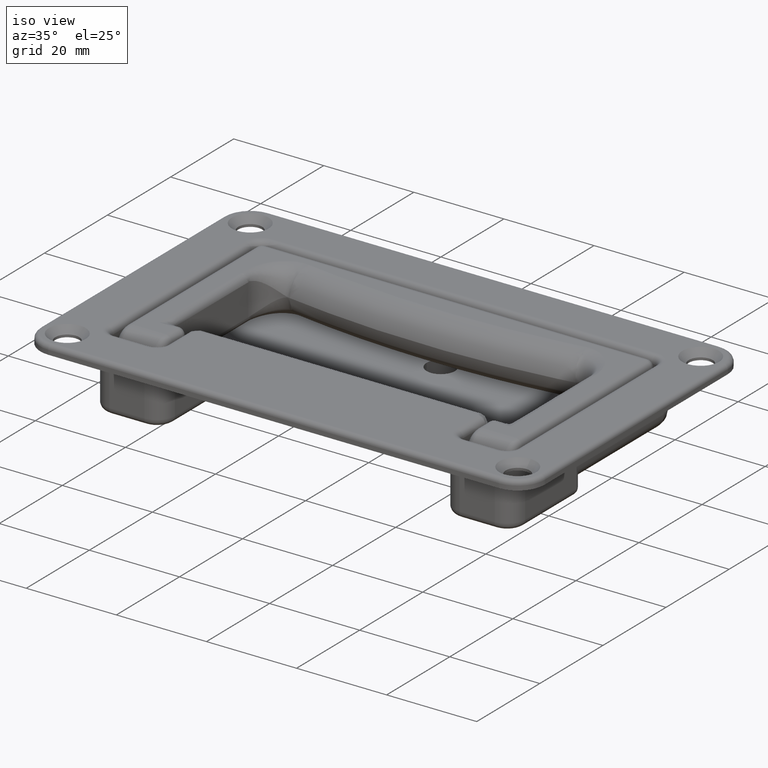
[diagram: clean part render]
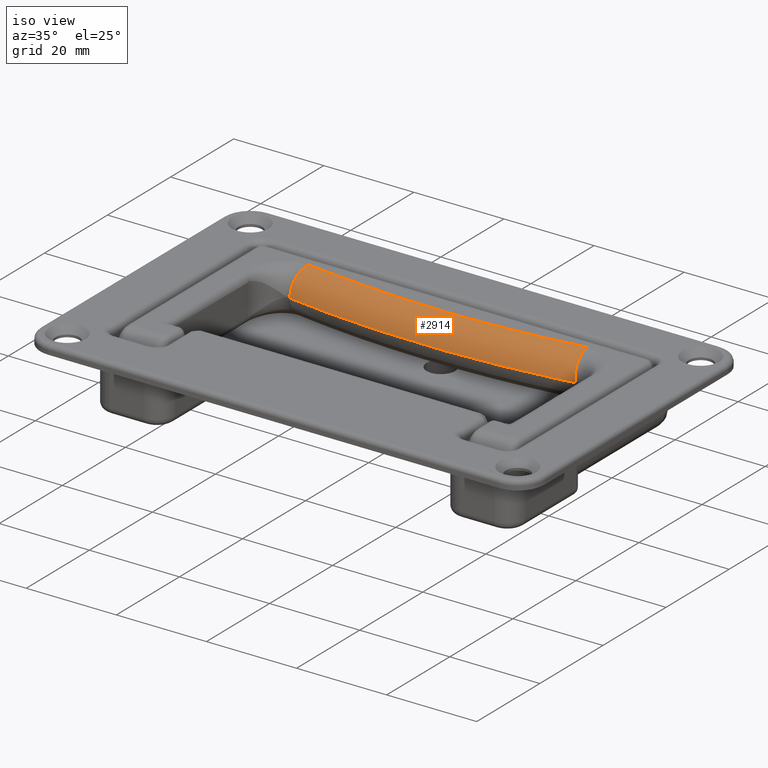
[diagram: same view with one face highlighted and labeled with its STEP entity id]
A machine part, iso view. The second image highlights one B-rep face of the part: STEP entity #2914.
In plain terms, the highlighted face is a freeform B-spline surface patch.
Its self-contained STEP definition (entity closure, byte-faithful):
#37=(
BOUNDED_SURFACE()
B_SPLINE_SURFACE(3,3,((#6235,#6236,#6237,#6238,#6239,#6240,#6241,#6242,
#6243,#6244,#6245,#6246,#6247,#6248,#6249,#6250,#6251,#6252,#6253,#6254,
#6255,#6256,#6257,#6258,#6259,#6260,#6261,#6262,#6263,#6264,#6265,#6266,
#6267,#6268,#6269,#6270,#6271,#6272,#6273,#6274,#6275,#6276,#6277,#6278,
#6279,#6280,#6281,#6282,#6283,#6284,#6285,#6286,#6287,#6288,#6289,#6290,
#6291,#6292,#6293),(#6294,#6295,#6296,#6297,#6298,#6299,#6300,#6301,#6302,
#6303,#6304,#6305,#6306,#6307,#6308,#6309,#6310,#6311,#6312,#6313,#6314,
#6315,#6316,#6317,#6318,#6319,#6320,#6321,#6322,#6323,#6324,#6325,#6326,
#6327,#6328,#6329,#6330,#6331,#6332,#6333,#6334,#6335,#6336,#6337,#6338,
#6339,#6340,#6341,#6342,#6343,#6344,#6345,#6346,#6347,#6348,#6349,#6350,
#6351,#6352),(#6353,#6354,#6355,#6356,#6357,#6358,#6359,#6360,#6361,#6362,
#6363,#6364,#6365,#6366,#6367,#6368,#6369,#6370,#6371,#6372,#6373,#6374,
#6375,#6376,#6377,#6378,#6379,#6380,#6381,#6382,#6383,#6384,#6385,#6386,
#6387,#6388,#6389,#6390,#6391,#6392,#6393,#6394,#6395,#6396,#6397,#6398,
#6399,#6400,#6401,#6402,#6403,#6404,#6405,#6406,#6407,#6408,#6409,#6410,
#6411),(#6412,#6413,#6414,#6415,#6416,#6417,#6418,#6419,#6420,#6421,#6422,
#6423,#6424,#6425,#6426,#6427,#6428,#6429,#6430,#6431,#6432,#6433,#6434,
#6435,#6436,#6437,#6438,#6439,#6440,#6441,#6442,#6443,#6444,#6445,#6446,
#6447,#6448,#6449,#6450,#6451,#6452,#6453,#6454,#6455,#6456,#6457,#6458,
#6459,#6460,#6461,#6462,#6463,#6464,#6465,#6466,#6467,#6468,#6469,#6470)),
 .UNSPECIFIED.,.F.,.F.,.F.)
B_SPLINE_SURFACE_WITH_KNOTS((4,4),(4,1,1,1,1,1,1,1,1,1,1,1,1,1,1,1,1,1,
1,1,1,1,1,1,1,1,1,1,1,1,1,1,1,1,1,1,1,1,1,1,1,1,1,1,1,1,1,1,1,1,1,1,1,1,
1,1,4),(0.,1.),(0.,0.0031067408961337,0.00706060473717921,0.0109126921259984,
0.0150313092078769,0.0195351392685787,0.0244048529274623,0.0296864726446738,
0.0354174941198281,0.0416379597517066,0.0483949547568112,0.0557395278980215,
0.0637289168728359,0.0724269222884277,0.0819048607997896,0.0922428410743,
0.103531170099131,0.115872104203052,0.129381903727005,0.144193272844084,
0.160458432106241,0.178353037445149,0.198081024029385,0.219880825336709,
0.244033423261423,0.270872197346571,0.300799786673113,0.334292865968391,
0.371982362949465,0.414484274279425,0.463183869029946,0.517319185773744,
0.570740002156209,0.618187999553019,0.659897798131041,0.696843616389402,
0.729767065893478,0.75923526261593,0.785707731060811,0.809582450006799,
0.831163804482408,0.850724371146397,0.868489781829198,0.884666721153594,
0.899404935101038,0.912836157773377,0.925087151757453,0.936282771320659,
0.946541483564136,0.955907683879712,0.964382955670574,0.971966900334107,
0.978757667570511,0.984953391394723,0.990764054962599,0.996426813470781,
1.),.UNSPECIFIED.)
GEOMETRIC_REPRESENTATION_ITEM()
RATIONAL_B_SPLINE_SURFACE(((1.191078568094,1.191078568094,1.191078568094,
1.191078568094,1.191078568094,1.191078568094,1.191078568094,1.191078568094,
1.191078568094,1.191078568094,1.191078568094,1.191078568094,1.191078568094,
1.191078568094,1.191078568094,1.191078568094,1.191078568094,1.191078568094,
1.191078568094,1.191078568094,1.191078568094,1.191078568094,1.191078568094,
1.191078568094,1.191078568094,1.191078568094,1.191078568094,1.191078568094,
1.191078568094,1.191078568094,1.191078568094,1.191078568094,1.191078568094,
1.191078568094,1.191078568094,1.191078568094,1.191078568094,1.191078568094,
1.191078568094,1.191078568094,1.191078568094,1.191078568094,1.191078568094,
1.191078568094,1.191078568094,1.191078568094,1.191078568094,1.191078568094,
1.191078568094,1.191078568094,1.191078568094,1.191078568094,1.191078568094,
1.191078568094,1.191078568094,1.191078568094,1.191078568094,1.191078568094,
1.191078568094),(0.9363071439685,0.9363071439685,0.9363071439685,0.9363071439685,
0.9363071439685,0.9363071439685,0.9363071439685,0.9363071439685,0.9363071439685,
0.9363071439685,0.9363071439685,0.9363071439685,0.9363071439685,0.9363071439685,
0.9363071439685,0.9363071439685,0.9363071439685,0.9363071439685,0.9363071439685,
0.9363071439685,0.9363071439685,0.9363071439685,0.9363071439685,0.9363071439685,
0.9363071439685,0.9363071439685,0.9363071439685,0.9363071439685,0.9363071439685,
0.9363071439685,0.9363071439685,0.9363071439685,0.9363071439685,0.9363071439685,
0.9363071439685,0.9363071439685,0.9363071439685,0.9363071439685,0.9363071439685,
0.9363071439685,0.9363071439685,0.9363071439685,0.9363071439685,0.9363071439685,
0.9363071439685,0.9363071439685,0.9363071439685,0.9363071439685,0.9363071439685,
0.9363071439685,0.9363071439685,0.9363071439685,0.9363071439685,0.9363071439685,
0.9363071439685,0.9363071439685,0.9363071439685,0.9363071439685,0.9363071439685),
(0.9363071439685,0.9363071439685,0.9363071439685,0.9363071439685,0.9363071439685,
0.9363071439685,0.9363071439685,0.9363071439685,0.9363071439685,0.9363071439685,
0.9363071439685,0.9363071439685,0.9363071439685,0.9363071439685,0.9363071439685,
0.9363071439685,0.9363071439685,0.9363071439685,0.9363071439685,0.9363071439685,
0.9363071439685,0.9363071439685,0.9363071439685,0.9363071439685,0.9363071439685,
0.9363071439685,0.9363071439685,0.9363071439685,0.9363071439685,0.9363071439685,
0.9363071439685,0.9363071439685,0.9363071439685,0.9363071439685,0.9363071439685,
0.9363071439685,0.9363071439685,0.9363071439685,0.9363071439685,0.9363071439685,
0.9363071439685,0.9363071439685,0.9363071439685,0.9363071439685,0.9363071439685,
0.9363071439685,0.9363071439685,0.9363071439685,0.9363071439685,0.9363071439685,
0.9363071439685,0.9363071439685,0.9363071439685,0.9363071439685,0.9363071439685,
0.9363071439685,0.9363071439685,0.9363071439685,0.9363071439685),(1.191078568094,
1.191078568094,1.191078568094,1.191078568094,1.191078568094,1.191078568094,
1.191078568094,1.191078568094,1.191078568094,1.191078568094,1.191078568094,
1.191078568094,1.191078568094,1.191078568094,1.191078568094,1.191078568094,
1.191078568094,1.191078568094,1.191078568094,1.191078568094,1.191078568094,
1.191078568094,1.191078568094,1.191078568094,1.191078568094,1.191078568094,
1.191078568094,1.191078568094,1.191078568094,1.191078568094,1.191078568094,
1.191078568094,1.191078568094,1.191078568094,1.191078568094,1.191078568094,
1.191078568094,1.191078568094,1.191078568094,1.191078568094,1.191078568094,
1.191078568094,1.191078568094,1.191078568094,1.191078568094,1.191078568094,
1.191078568094,1.191078568094,1.191078568094,1.191078568094,1.191078568094,
1.191078568094,1.191078568094,1.191078568094,1.191078568094,1.191078568094,
1.191078568094,1.191078568094,1.191078568094)))
REPRESENTATION_ITEM('')
SURFACE()
);
#94=B_SPLINE_CURVE_WITH_KNOTS('',3,(#4807,#4808,#4809,#4810,#4811,#4812,
#4813,#4814,#4815,#4816,#4817,#4818,#4819,#4820,#4821,#4822,#4823,#4824,
#4825,#4826,#4827,#4828,#4829,#4830,#4831,#4832,#4833,#4834,#4835,#4836,
#4837,#4838,#4839,#4840,#4841,#4842,#4843,#4844,#4845,#4846,#4847,#4848,
#4849,#4850,#4851,#4852,#4853,#4854,#4855,#4856,#4857,#4858,#4859,#4860,
#4861),.UNSPECIFIED.,.F.,.F.,(4,1,1,1,1,1,1,1,1,1,1,1,1,1,1,1,1,1,1,1,1,
1,1,1,1,1,1,1,1,1,1,1,1,1,1,1,1,1,1,1,1,1,1,1,1,1,1,1,1,1,1,1,4),(0.,0.01923076923077,
0.03846153846154,0.05769230769231,0.07692307692308,0.09615384615385,0.1153846153846,
0.1346153846154,0.1538461538462,0.1730769230769,0.1923076923077,0.2115384615385,
0.2307692307692,0.25,0.2692307692308,0.2884615384615,0.3076923076923,0.3269230769231,
0.3461538461538,0.3653846153846,0.3846153846154,0.4038461538462,0.4230769230769,
0.4423076923077,0.4615384615385,0.4807692307692,0.5,0.5192307692308,0.5384615384615,
0.5576923076923,0.5769230769231,0.5961538461538,0.6153846153846,0.6346153846154,
0.6538461538462,0.6730769230769,0.6923076923077,0.7115384615385,0.7307692307692,
0.75,0.7692307692308,0.7884615384615,0.8076923076923,0.8269230769231,0.8461538461538,
0.8653846153846,0.8846153846154,0.9038461538462,0.9230769230769,0.9423076923077,
0.9615384615385,0.9807692307692,1.),.UNSPECIFIED.);
#112=B_SPLINE_CURVE_WITH_KNOTS('',3,(#6185,#6186,#6187,#6188,#6189,#6190,
#6191,#6192,#6193,#6194,#6195,#6196,#6197,#6198,#6199,#6200,#6201,#6202,
#6203,#6204,#6205,#6206,#6207,#6208,#6209,#6210,#6211,#6212,#6213,#6214,
#6215,#6216,#6217,#6218,#6219,#6220,#6221,#6222,#6223,#6224,#6225,#6226,
#6227,#6228,#6229,#6230,#6231,#6232,#6233,#6234),.UNSPECIFIED.,.F.,.F.,
(4,2,2,2,2,2,2,2,2,2,2,2,2,2,2,2,2,2,2,2,2,2,2,2,4),(0.,0.0452750668471288,
0.0898338963502772,0.13374371765165,0.177069405610516,0.221123353366399,
0.26327097904619,0.30505733008236,0.346536323288448,0.387761067408007,0.428784064068944,
0.469657398323505,0.510432917995307,0.551162400854743,0.59250867196098,
0.633370461100893,0.674351930225354,0.715500234889848,0.757108318593547,
0.798877860228519,0.841149953553067,0.881932569704645,0.924974291673601,
0.968697033747301,1.),.UNSPECIFIED.);
#113=B_SPLINE_CURVE_WITH_KNOTS('',3,(#6472,#6473,#6474,#6475,#6476,#6477,
#6478,#6479,#6480,#6481,#6482,#6483,#6484,#6485,#6486,#6487,#6488,#6489,
#6490,#6491,#6492,#6493,#6494,#6495,#6496,#6497,#6498,#6499,#6500,#6501,
#6502,#6503,#6504,#6505,#6506,#6507,#6508,#6509,#6510,#6511,#6512,#6513,
#6514,#6515,#6516,#6517,#6518,#6519,#6520,#6521,#6522,#6523,#6524,#6525,
#6526,#6527,#6528,#6529,#6530,#6531,#6532,#6533,#6534,#6535,#6536,#6537,
#6538,#6539,#6540,#6541,#6542,#6543,#6544,#6545,#6546,#6547,#6548,#6549,
#6550,#6551,#6552,#6553,#6554,#6555,#6556,#6557,#6558,#6559,#6560,#6561,
#6562,#6563,#6564,#6565,#6566,#6567,#6568,#6569,#6570,#6571,#6572,#6573,
#6574,#6575,#6576,#6577,#6578,#6579,#6580,#6581,#6582,#6583,#6584,#6585,
#6586,#6587,#6588,#6589,#6590,#6591,#6592,#6593,#6594,#6595,#6596,#6597,
#6598,#6599,#6600,#6601,#6602,#6603,#6604,#6605,#6606,#6607,#6608,#6609,
#6610,#6611,#6612,#6613,#6614),.UNSPECIFIED.,.F.,.F.,(4,2,2,2,2,2,2,2,2,
2,2,2,2,2,2,2,2,2,2,2,2,2,2,2,2,2,2,2,2,2,2,2,2,2,2,2,2,2,2,2,2,2,2,2,2,
2,1,2,2,2,2,2,2,2,2,2,2,2,2,2,2,2,2,2,2,2,2,2,2,2,2,4),(0.,0.0134502502329202,
0.0269010409848332,0.0403519753413261,0.0538024401530499,0.062500000000008,
0.0759478269140315,0.0781250000000099,0.0859375000000109,0.0898437500000115,
0.0916055434963302,0.093750000000012,0.103285460841446,0.114333926483047,
0.125000000000015,0.13604792905593,0.147094238336974,0.156250000000017,
0.160156250000018,0.161929207612994,0.164062500000018,0.171875000000018,
0.18000997101178,0.187500000000017,0.200469068591085,0.213436460290535,
0.226401855597884,0.239362214722198,0.244368970073248,0.250000000000016,
0.262952358147454,0.275890989520313,0.280978551976782,0.281250000000015,
0.291155724437667,0.301136915811092,0.311151656948225,0.312500000000014,
0.313434805398419,0.346131632928028,0.375000000000012,0.378828385488723,
0.411525041703938,0.43750000000001,0.444221634083674,0.476918255050848,
0.484375000000009,0.492187500000009,0.495066266146991,0.498072247559715,
0.500000000000009,0.511822498585362,0.539238883639372,0.554366338875631,
0.581940759727352,0.601424581462226,0.629134083791194,0.654838162969735,
0.682618157194314,0.710450853947515,0.71819661544615,0.746061635238917,
0.750000000000004,0.77789767512645,0.800766970929936,0.828672722622711,
0.856586826431758,0.884505760726815,0.913379320545111,0.941301663099795,
0.970650831549898,1.),.UNSPECIFIED.);
#114=B_SPLINE_CURVE_WITH_KNOTS('',3,(#6615,#6616,#6617,#6618,#6619,#6620,
#6621,#6622,#6623,#6624,#6625,#6626,#6627,#6628,#6629,#6630,#6631,#6632,
#6633,#6634,#6635,#6636,#6637,#6638,#6639,#6640,#6641,#6642,#6643,#6644,
#6645,#6646,#6647,#6648,#6649,#6650,#6651,#6652,#6653,#6654,#6655,#6656,
#6657,#6658,#6659,#6660,#6661,#6662,#6663,#6664,#6665,#6666,#6667,#6668,
#6669,#6670,#6671,#6672,#6673,#6674,#6675,#6676,#6677,#6678,#6679,#6680,
#6681,#6682,#6683,#6684,#6685,#6686,#6687),.UNSPECIFIED.,.F.,.F.,(4,3,3,
3,3,3,3,3,3,3,3,3,3,3,3,3,3,3,3,3,3,3,3,3,4),(0.,0.044076678863473,0.0873671548322226,
0.129586886924584,0.171005454363514,0.212129772568075,0.252821827003988,
0.293465263261969,0.334088407901873,0.375566305926405,0.416105401770895,
0.458052700885447,0.5,0.541031962686012,0.582255763623328,0.623674304074553,
0.665255482470517,0.707098547161702,0.748926373752993,0.790895293067639,
0.83314670899277,0.87622991773283,0.919785676056079,0.963409505770987,1.),
 .UNSPECIFIED.);
#650=FACE_OUTER_BOUND('',#850,.T.);
#850=EDGE_LOOP('',(#2125,#2126,#2127,#2128));
#1271=VERTEX_POINT('',#4767);
#1272=VERTEX_POINT('',#4806);
#1296=VERTEX_POINT('',#5775);
#1297=VERTEX_POINT('',#6471);
#1548=EDGE_CURVE('',#1271,#1272,#94,.T.);
#1603=EDGE_CURVE('',#1296,#1271,#112,.T.);
#1604=EDGE_CURVE('',#1296,#1297,#113,.T.);
#1605=EDGE_CURVE('',#1272,#1297,#114,.T.);
#2125=ORIENTED_EDGE('',*,*,#1603,.F.);
#2126=ORIENTED_EDGE('',*,*,#1604,.T.);
#2127=ORIENTED_EDGE('',*,*,#1605,.F.);
#2128=ORIENTED_EDGE('',*,*,#1548,.F.);
#2914=ADVANCED_FACE('',(#650),#37,.T.);
#4767=CARTESIAN_POINT('',(24.0293794437392,-47.6178597288155,-55.0000000002253));
#4806=CARTESIAN_POINT('',(85.9705894391777,-47.6176548354726,-55.000001796243));
#4807=CARTESIAN_POINT('Ctrl Pts',(24.0293800216898,-47.61785981826,-55.000000000007));
#4808=CARTESIAN_POINT('Ctrl Pts',(24.1092527912098,-47.62915603768,-55.000000000007));
#4809=CARTESIAN_POINT('Ctrl Pts',(24.2761227168398,-47.65561455615,-55.000000000007));
#4810=CARTESIAN_POINT('Ctrl Pts',(24.5498404143898,-47.69775284032,-55.000000000007));
#4811=CARTESIAN_POINT('Ctrl Pts',(24.8448542284998,-47.74212288608,-55.000000000007));
#4812=CARTESIAN_POINT('Ctrl Pts',(25.1645028296099,-47.79016348175,-55.000000000007));
#4813=CARTESIAN_POINT('Ctrl Pts',(25.5109077576697,-47.84140811226,-55.000000000007));
#4814=CARTESIAN_POINT('Ctrl Pts',(25.8863283082898,-47.89635524015,-55.000000000007));
#4815=CARTESIAN_POINT('Ctrl Pts',(26.2935685109299,-47.95510890182,-55.000000000007));
#4816=CARTESIAN_POINT('Ctrl Pts',(26.7355768000898,-48.0179414784599,-55.000000000007));
#4817=CARTESIAN_POINT('Ctrl Pts',(27.2156843304598,-48.0850607089,-55.000000000007));
#4818=CARTESIAN_POINT('Ctrl Pts',(27.7375909488598,-48.15670066925,-55.000000000007));
#4819=CARTESIAN_POINT('Ctrl Pts',(28.3054211984298,-48.2330772410101,-55.000000000007));
#4820=CARTESIAN_POINT('Ctrl Pts',(28.9237954909598,-48.3143982703899,-55.000000000007));
#4821=CARTESIAN_POINT('Ctrl Pts',(29.5979067727298,-48.4008492597401,-55.000000000007));
#4822=CARTESIAN_POINT('Ctrl Pts',(30.3336160027798,-48.4925848242399,-55.000000000007));
#4823=CARTESIAN_POINT('Ctrl Pts',(31.1375656329897,-48.5897130874901,-55.000000000007));
#4824=CARTESIAN_POINT('Ctrl Pts',(32.0173098368399,-48.69227529765,-55.000000000007));
#4825=CARTESIAN_POINT('Ctrl Pts',(32.9814752030897,-48.8002182768,-55.000000000007));
#4826=CARTESIAN_POINT('Ctrl Pts',(34.0399655942798,-48.9133585489101,-55.000000000007));
#4827=CARTESIAN_POINT('Ctrl Pts',(35.2042236589499,-49.0313337861499,-55.000000000007));
#4828=CARTESIAN_POINT('Ctrl Pts',(36.4875149391598,-49.1535336570601,-55.000000000007));
#4829=CARTESIAN_POINT('Ctrl Pts',(37.9054590010999,-49.2790165147499,-55.000000000007));
#4830=CARTESIAN_POINT('Ctrl Pts',(39.4761165522898,-49.4063534222501,-55.000000000007));
#4831=CARTESIAN_POINT('Ctrl Pts',(41.2220495337799,-49.53353611694,-55.000000000007));
#4832=CARTESIAN_POINT('Ctrl Pts',(43.1671188914598,-49.6574791317701,-55.000000000007));
#4833=CARTESIAN_POINT('Ctrl Pts',(45.3487046439958,-49.7742676483299,-55.000000000007));
#4834=CARTESIAN_POINT('Ctrl Pts',(47.7935260315449,-49.8772343320201,-55.000000000007));
#4835=CARTESIAN_POINT('Ctrl Pts',(50.563725458114,-49.9587125389099,-55.000000000007));
#4836=CARTESIAN_POINT('Ctrl Pts',(53.7706303667948,-50.0058078427101,-55.000000000007));
#4837=CARTESIAN_POINT('Ctrl Pts',(57.2473225627088,-49.99727320452,-55.000000000007));
#4838=CARTESIAN_POINT('Ctrl Pts',(60.5112542659628,-49.93261791549,-55.000000000007));
#4839=CARTESIAN_POINT('Ctrl Pts',(63.3380859421629,-49.83400947272,-55.000000000007));
#4840=CARTESIAN_POINT('Ctrl Pts',(65.8365144194297,-49.71441601733,-55.000000000007));
#4841=CARTESIAN_POINT('Ctrl Pts',(68.0572945491299,-49.5822222069699,-55.000000000007));
#4842=CARTESIAN_POINT('Ctrl Pts',(70.0426768023799,-49.44343016686,-55.000000000007));
#4843=CARTESIAN_POINT('Ctrl Pts',(71.8238953973298,-49.30228277868,-55.000000000007));
#4844=CARTESIAN_POINT('Ctrl Pts',(73.4275702970499,-49.16172990941,-55.000000000007));
#4845=CARTESIAN_POINT('Ctrl Pts',(74.8770609617999,-49.02367274146,-55.000000000007));
#4846=CARTESIAN_POINT('Ctrl Pts',(76.1892968446799,-48.8896447096,-55.000000000007));
#4847=CARTESIAN_POINT('Ctrl Pts',(77.3807827483,-48.7604903165299,-55.000000000007));
#4848=CARTESIAN_POINT('Ctrl Pts',(78.4643843564298,-48.6368529620301,-55.000000000007));
#4849=CARTESIAN_POINT('Ctrl Pts',(79.4529371466497,-48.5189164904699,-55.000000000007));
#4850=CARTESIAN_POINT('Ctrl Pts',(80.3545490561998,-48.40706172733,-55.000000000007));
#4851=CARTESIAN_POINT('Ctrl Pts',(81.1771319600399,-48.3014359264,-55.000000000007));
#4852=CARTESIAN_POINT('Ctrl Pts',(81.9283215098899,-48.2019934031501,-55.000000000007));
#4853=CARTESIAN_POINT('Ctrl Pts',(82.6154824681198,-48.10853038731,-55.000000000007));
#4854=CARTESIAN_POINT('Ctrl Pts',(83.2467716921299,-48.02055190361,-55.000000000007));
#4855=CARTESIAN_POINT('Ctrl Pts',(83.8240983614699,-47.9383533957301,-55.000000000007));
#4856=CARTESIAN_POINT('Ctrl Pts',(84.3475213820798,-47.86222810534,-55.000000000007));
#4857=CARTESIAN_POINT('Ctrl Pts',(84.8155741172398,-47.7934417465501,-55.000000000007));
#4858=CARTESIAN_POINT('Ctrl Pts',(85.2339265054899,-47.72948663375,-55.000000000007));
#4859=CARTESIAN_POINT('Ctrl Pts',(85.61518731985,-47.6751169615399,-55.000000000007));
#4860=CARTESIAN_POINT('Ctrl Pts',(85.8543837340998,-47.63166813119,-55.000000000007));
#4861=CARTESIAN_POINT('Ctrl Pts',(85.9705894388899,-47.61765483535,-55.000000000007));
#5775=CARTESIAN_POINT('',(23.2647585947958,-52.5588316864262,-59.9999158838627));
#6185=CARTESIAN_POINT('Ctrl Pts',(23.2647029338617,-52.5588426561235,-59.9999158820351));
#6186=CARTESIAN_POINT('Ctrl Pts',(23.2647022731083,-52.55884784522,-59.8960255633077));
#6187=CARTESIAN_POINT('Ctrl Pts',(23.2652533916045,-52.5556605063338,-59.7906648262491));
#6188=CARTESIAN_POINT('Ctrl Pts',(23.2675101809074,-52.5424786834541,-59.5792180184204));
#6189=CARTESIAN_POINT('Ctrl Pts',(23.2691975109408,-52.5325921634922,-59.4731699473322));
#6190=CARTESIAN_POINT('Ctrl Pts',(23.2737290781481,-52.5058594944202,-59.2608915481213));
#6191=CARTESIAN_POINT('Ctrl Pts',(23.2765561572193,-52.4891163188977,-59.1546866204058));
#6192=CARTESIAN_POINT('Ctrl Pts',(23.2833596485791,-52.4485692210007,-58.942660605362));
#6193=CARTESIAN_POINT('Ctrl Pts',(23.2873203083661,-52.4248617438079,-58.8368535409396));
#6194=CARTESIAN_POINT('Ctrl Pts',(23.2965051326989,-52.369549015937,-58.6231502575352));
#6195=CARTESIAN_POINT('Ctrl Pts',(23.3017494804623,-52.3378170686054,-58.5152491134288));
#6196=CARTESIAN_POINT('Ctrl Pts',(23.3132204361247,-52.2679845332943,-58.3045899290549));
#6197=CARTESIAN_POINT('Ctrl Pts',(23.3193946849823,-52.2302188879903,-58.2018120018797));
#6198=CARTESIAN_POINT('Ctrl Pts',(23.3328093760746,-52.1476949295064,-57.9983252592083));
#6199=CARTESIAN_POINT('Ctrl Pts',(23.3400402189108,-52.1029991057694,-57.8976067769204));
#6200=CARTESIAN_POINT('Ctrl Pts',(23.355527938355,-52.0067335259807,-57.6988368333705));
#6201=CARTESIAN_POINT('Ctrl Pts',(23.363776855001,-51.955216619354,-57.6007717582889));
#6202=CARTESIAN_POINT('Ctrl Pts',(23.3812533252399,-51.8454903438509,-57.4078969862769));
#6203=CARTESIAN_POINT('Ctrl Pts',(23.390474534042,-51.7873239040413,-57.3130715923067));
#6204=CARTESIAN_POINT('Ctrl Pts',(23.4098419569089,-51.6645419252261,-57.1272468963441));
#6205=CARTESIAN_POINT('Ctrl Pts',(23.4199833738973,-51.5999594158311,-57.0362317124999));
#6206=CARTESIAN_POINT('Ctrl Pts',(23.44113248718,-51.4646484970014,-56.8585725699657));
#6207=CARTESIAN_POINT('Ctrl Pts',(23.4521368273091,-51.3939435478999,-56.7719144254809));
#6208=CARTESIAN_POINT('Ctrl Pts',(23.4749492229517,-51.2467475503291,-56.6034813470222));
#6209=CARTESIAN_POINT('Ctrl Pts',(23.4867552222041,-51.1702710308182,-56.521695732574));
#6210=CARTESIAN_POINT('Ctrl Pts',(23.5111058783098,-51.0119439639661,-56.3634795587805));
#6211=CARTESIAN_POINT('Ctrl Pts',(23.5236496099204,-50.9300999481863,-56.2870435078674));
#6212=CARTESIAN_POINT('Ctrl Pts',(23.5496027713135,-50.7602324496373,-56.1388487814001));
#6213=CARTESIAN_POINT('Ctrl Pts',(23.5630223546199,-50.6721345377949,-56.0671789646974));
#6214=CARTESIAN_POINT('Ctrl Pts',(23.5903046680576,-50.492588310574,-55.9310871494414));
#6215=CARTESIAN_POINT('Ctrl Pts',(23.604160280016,-50.4011919297165,-55.8665902563591));
#6216=CARTESIAN_POINT('Ctrl Pts',(23.6324176176666,-50.2144958904329,-55.7440825285684));
#6217=CARTESIAN_POINT('Ctrl Pts',(23.6468207467899,-50.1191861374886,-55.6860914340345));
#6218=CARTESIAN_POINT('Ctrl Pts',(23.6761099544108,-49.9252398438856,-55.576866139302));
#6219=CARTESIAN_POINT('Ctrl Pts',(23.6909976895311,-49.826591918394,-55.525660490904));
#6220=CARTESIAN_POINT('Ctrl Pts',(23.7212867782939,-49.625972780704,-55.4299274464654));
#6221=CARTESIAN_POINT('Ctrl Pts',(23.7366919469729,-49.5239773452394,-55.3854810908562));
#6222=CARTESIAN_POINT('Ctrl Pts',(23.7678372823987,-49.3181059651069,-55.3038755525519));
#6223=CARTESIAN_POINT('Ctrl Pts',(23.7835784692636,-49.2142248343408,-55.2667451602747));
#6224=CARTESIAN_POINT('Ctrl Pts',(23.8154566230842,-49.0044858401366,-55.1995539684059));
#6225=CARTESIAN_POINT('Ctrl Pts',(23.8315960356067,-48.8986197906528,-55.1695834000969));
#6226=CARTESIAN_POINT('Ctrl Pts',(23.8634486023569,-48.6906440650661,-55.118082805509));
#6227=CARTESIAN_POINT('Ctrl Pts',(23.8791567563648,-48.588533736861,-55.0962919899662));
#6228=CARTESIAN_POINT('Ctrl Pts',(23.9115306892721,-48.3793465674334,-55.0584839629523));
#6229=CARTESIAN_POINT('Ctrl Pts',(23.9280966963467,-48.2722936871129,-55.042853390283));
#6230=CARTESIAN_POINT('Ctrl Pts',(23.9612729423821,-48.0579142578546,-55.0186456932273));
#6231=CARTESIAN_POINT('Ctrl Pts',(23.9778796835515,-47.950610550733,-55.0101836317904));
#6232=CARTESIAN_POINT('Ctrl Pts',(24.0060980114372,-47.7682853646946,-55.0017209394134));
#6233=CARTESIAN_POINT('Ctrl Pts',(24.0177885957147,-47.6927512451821,-54.9999987563465));
#6234=CARTESIAN_POINT('Ctrl Pts',(24.0293788656122,-47.6178596393445,-55.0000000006619));
#6235=CARTESIAN_POINT('Ctrl Pts',(23.3712263636599,-47.3883167891,-55.00356419603));
#6236=CARTESIAN_POINT('Ctrl Pts',(23.4391881329798,-47.38626674121,-55.003574211263));
#6237=CARTESIAN_POINT('Ctrl Pts',(23.5943673703398,-47.38510083422,-55.003689767143));
#6238=CARTESIAN_POINT('Ctrl Pts',(23.8387525103298,-47.39636846425,-55.003727922078));
#6239=CARTESIAN_POINT('Ctrl Pts',(24.1004577723498,-47.43185599611,-55.003745899688));
#6240=CARTESIAN_POINT('Ctrl Pts',(24.3603831221998,-47.4733276181,-55.003740974728));
#6241=CARTESIAN_POINT('Ctrl Pts',(24.6416242513298,-47.51578329199,-55.003742488604));
#6242=CARTESIAN_POINT('Ctrl Pts',(24.9483021456698,-47.56223765534,-55.003742032662));
#6243=CARTESIAN_POINT('Ctrl Pts',(25.2800814342699,-47.61176795797,-55.003742170533));
#6244=CARTESIAN_POINT('Ctrl Pts',(25.6404581521598,-47.66498882972,-55.00374212883));
#6245=CARTESIAN_POINT('Ctrl Pts',(26.0316832201998,-47.72199958687,-55.003742141455));
#6246=CARTESIAN_POINT('Ctrl Pts',(26.4568162877399,-47.78307425423,-55.00374213763));
#6247=CARTESIAN_POINT('Ctrl Pts',(26.9190861976698,-47.84844013307,-55.00374213879));
#6248=CARTESIAN_POINT('Ctrl Pts',(27.4221475952999,-47.91834200792,-55.003742138438));
#6249=CARTESIAN_POINT('Ctrl Pts',(27.9700623565498,-47.9930163613,-55.003742138545));
#6250=CARTESIAN_POINT('Ctrl Pts',(28.5673877892699,-48.0726926606,-55.003742138512));
#6251=CARTESIAN_POINT('Ctrl Pts',(29.2192434947899,-48.15758339346,-55.003742138522));
#6252=CARTESIAN_POINT('Ctrl Pts',(29.9314097318498,-48.24787508099,-55.003742138519));
#6253=CARTESIAN_POINT('Ctrl Pts',(30.7104376711298,-48.34371431427,-55.00374213852));
#6254=CARTESIAN_POINT('Ctrl Pts',(31.5637832790498,-48.44518912168,-55.00374213852));
#6255=CARTESIAN_POINT('Ctrl Pts',(32.4999688512198,-48.55230353216,-55.00374213852));
#6256=CARTESIAN_POINT('Ctrl Pts',(33.5287842976598,-48.66494350081,-55.00374213852));
#6257=CARTESIAN_POINT('Ctrl Pts',(34.6615393224998,-48.78283076896,-55.00374213852));
#6258=CARTESIAN_POINT('Ctrl Pts',(35.9113821378999,-48.90545986312,-55.00374213852));
#6259=CARTESIAN_POINT('Ctrl Pts',(37.2937052521898,-49.03201116563,-55.00374213852));
#6260=CARTESIAN_POINT('Ctrl Pts',(38.8266563800999,-49.16122876346,-55.00374213852));
#6261=CARTESIAN_POINT('Ctrl Pts',(40.5318724390798,-49.29125413188,-55.00374213852));
#6262=CARTESIAN_POINT('Ctrl Pts',(42.4351420121698,-49.41936404892,-55.00374213852));
#6263=CARTESIAN_POINT('Ctrl Pts',(44.5685457687398,-49.54168022795,-55.00374213852));
#6264=CARTESIAN_POINT('Ctrl Pts',(46.9686617000848,-49.65244461736,-55.00374213852));
#6265=CARTESIAN_POINT('Ctrl Pts',(49.6911988836588,-49.74382261462,-55.00374213852));
#6266=CARTESIAN_POINT('Ctrl Pts',(52.7623052516108,-49.80297859579,-55.00374213852));
#6267=CARTESIAN_POINT('Ctrl Pts',(56.0647669387868,-49.8133664696,-55.00374213852));
#6268=CARTESIAN_POINT('Ctrl Pts',(59.3404800401008,-49.76845814753,-55.00374213852));
#6269=CARTESIAN_POINT('Ctrl Pts',(62.3525430305259,-49.67953201279,-55.00374213852));
#6270=CARTESIAN_POINT('Ctrl Pts',(65.0151804369898,-49.56367224423,-55.00374213852));
#6271=CARTESIAN_POINT('Ctrl Pts',(67.3696797961498,-49.4321286731,-55.00374213852));
#6272=CARTESIAN_POINT('Ctrl Pts',(69.4644440904698,-49.29207525156,-55.00374213852));
#6273=CARTESIAN_POINT('Ctrl Pts',(71.3370321172998,-49.14847408767,-55.00374213852));
#6274=CARTESIAN_POINT('Ctrl Pts',(73.0177410599199,-49.00475755255,-55.00374213852));
#6275=CARTESIAN_POINT('Ctrl Pts',(74.5313010187298,-48.86329717635,-55.00374213852));
#6276=CARTESIAN_POINT('Ctrl Pts',(75.8984691293398,-48.7256888993,-55.00374213852));
#6277=CARTESIAN_POINT('Ctrl Pts',(77.1363396554599,-48.59302809811,-55.00374213852));
#6278=CARTESIAN_POINT('Ctrl Pts',(78.2599174124698,-48.46596443912,-55.003742138521));
#6279=CARTESIAN_POINT('Ctrl Pts',(79.2815938327398,-48.34491780343,-55.003742138516));
#6280=CARTESIAN_POINT('Ctrl Pts',(80.2117618840199,-48.2301408898,-55.003742138534));
#6281=CARTESIAN_POINT('Ctrl Pts',(81.0591106947299,-48.12178424518,-55.003742138473));
#6282=CARTESIAN_POINT('Ctrl Pts',(81.8317955298398,-48.0198126639101,-55.003742138673));
#6283=CARTESIAN_POINT('Ctrl Pts',(82.5376448852398,-47.92402385204,-55.003742138019));
#6284=CARTESIAN_POINT('Ctrl Pts',(83.1828300454598,-47.83425046525,-55.00374214016));
#6285=CARTESIAN_POINT('Ctrl Pts',(83.7706787769599,-47.7506343894,-55.003742133193));
#6286=CARTESIAN_POINT('Ctrl Pts',(84.3027314835198,-47.67336421469,-55.003742155553));
#6287=CARTESIAN_POINT('Ctrl Pts',(84.7797435743098,-47.60308864559,-55.003742084327));
#6288=CARTESIAN_POINT('Ctrl Pts',(85.2113502793199,-47.53779047354,-55.003742307733));
#6289=CARTESIAN_POINT('Ctrl Pts',(85.6008259430699,-47.48037972771,-55.003741533069));
#6290=CARTESIAN_POINT('Ctrl Pts',(85.9727923653899,-47.41692372626,-55.0037435896));
#6291=CARTESIAN_POINT('Ctrl Pts',(86.3078156975199,-47.38606639246,-55.003727303834));
#6292=CARTESIAN_POINT('Ctrl Pts',(86.5121683331698,-47.38529149653,-55.003601613335));
#6293=CARTESIAN_POINT('Ctrl Pts',(86.5907999716799,-47.3871351178,-55.003584725761));
#6294=CARTESIAN_POINT('Ctrl Pts',(23.4455269817298,-50.41533154913,-54.888497749294));
#6295=CARTESIAN_POINT('Ctrl Pts',(23.4719834596498,-50.42856577959,-54.887948486674));
#6296=CARTESIAN_POINT('Ctrl Pts',(23.5245564637899,-50.4559364021,-54.885359242414));
#6297=CARTESIAN_POINT('Ctrl Pts',(23.5405083708098,-50.49108905438,-54.88368313725));
#6298=CARTESIAN_POINT('Ctrl Pts',(23.6121376640799,-50.50489767664,-54.88326160946));
#6299=CARTESIAN_POINT('Ctrl Pts',(23.8826477715998,-50.54603092049,-54.883375024772));
#6300=CARTESIAN_POINT('Ctrl Pts',(24.1799522033498,-50.59155294818,-54.883339992922));
#6301=CARTESIAN_POINT('Ctrl Pts',(24.4839598250698,-50.63741263024,-54.883350530672));
#6302=CARTESIAN_POINT('Ctrl Pts',(24.8241399659799,-50.68826003604,-54.883347343193));
#6303=CARTESIAN_POINT('Ctrl Pts',(25.1887600112898,-50.74208681815,-54.883348307256));
#6304=CARTESIAN_POINT('Ctrl Pts',(25.5864752010499,-50.8000504258,-54.883348015383));
#6305=CARTESIAN_POINT('Ctrl Pts',(26.0179764823098,-50.86203749636,-54.883348103825));
#6306=CARTESIAN_POINT('Ctrl Pts',(26.4874101698498,-50.9284172101,-54.883348076998));
#6307=CARTESIAN_POINT('Ctrl Pts',(26.9981859772598,-50.9993907196,-54.883348085145));
#6308=CARTESIAN_POINT('Ctrl Pts',(27.5545302252998,-51.07521402186,-54.883348082668));
#6309=CARTESIAN_POINT('Ctrl Pts',(28.1610363238198,-51.15611487693,-54.883348083422));
#6310=CARTESIAN_POINT('Ctrl Pts',(28.8229137379898,-51.24231074406,-54.883348083192));
#6311=CARTESIAN_POINT('Ctrl Pts',(29.5460279554798,-51.33399046159,-54.883348083262));
#6312=CARTESIAN_POINT('Ctrl Pts',(30.3370320315398,-51.43130305043,-54.883348083241));
#6313=CARTESIAN_POINT('Ctrl Pts',(31.2034961772598,-51.53433783605,-54.883348083247));
#6314=CARTESIAN_POINT('Ctrl Pts',(32.1540738226798,-51.64309892717,-54.883348083245));
#6315=CARTESIAN_POINT('Ctrl Pts',(33.1987053406399,-51.75747052001,-54.883348083246));
#6316=CARTESIAN_POINT('Ctrl Pts',(34.3488743125898,-51.87717008,-54.883348083245));
#6317=CARTESIAN_POINT('Ctrl Pts',(35.6179310754898,-52.00168436238,-54.883348083246));
#6318=CARTESIAN_POINT('Ctrl Pts',(37.0215047693998,-52.13018114964,-54.883348083246));
#6319=CARTESIAN_POINT('Ctrl Pts',(38.5780220949698,-52.26138522138,-54.883348083246));
#6320=CARTESIAN_POINT('Ctrl Pts',(40.3094525967399,-52.3934094817,-54.883348083246));
#6321=CARTESIAN_POINT('Ctrl Pts',(42.2419813064598,-52.52348884416,-54.883348083246));
#6322=CARTESIAN_POINT('Ctrl Pts',(44.4081820762498,-52.64768540109,-54.883348083246));
#6323=CARTESIAN_POINT('Ctrl Pts',(46.8451952080648,-52.76015258146,-54.883348083246));
#6324=CARTESIAN_POINT('Ctrl Pts',(49.6095862064788,-52.8529353411,-54.883348083246));
#6325=CARTESIAN_POINT('Ctrl Pts',(52.7279049915548,-52.91300073259,-54.883348083246));
#6326=CARTESIAN_POINT('Ctrl Pts',(56.0811356937378,-52.92354829965,-54.883348083246));
#6327=CARTESIAN_POINT('Ctrl Pts',(59.4072066107668,-52.87794959865,-54.883348083246));
#6328=CARTESIAN_POINT('Ctrl Pts',(62.4655743433399,-52.78765639385,-54.883348083246));
#6329=CARTESIAN_POINT('Ctrl Pts',(65.1691447119998,-52.67001550273,-54.883348083246));
#6330=CARTESIAN_POINT('Ctrl Pts',(67.5598400092498,-52.53644970009,-54.883348083246));
#6331=CARTESIAN_POINT('Ctrl Pts',(69.6868073052898,-52.39424322465,-54.883348083245));
#6332=CARTESIAN_POINT('Ctrl Pts',(71.5881828021299,-52.24843446656,-54.883348083246));
#6333=CARTESIAN_POINT('Ctrl Pts',(73.2947294289498,-52.10250856518,-54.883348083244));
#6334=CARTESIAN_POINT('Ctrl Pts',(74.8315575084599,-51.95887350202,-54.883348083249));
#6335=CARTESIAN_POINT('Ctrl Pts',(76.2197431408499,-51.81914977196,-54.883348083233));
#6336=CARTESIAN_POINT('Ctrl Pts',(77.4766438081198,-51.68444952764,-54.883348083286));
#6337=CARTESIAN_POINT('Ctrl Pts',(78.6174936680998,-51.55543262226,-54.883348083115));
#6338=CARTESIAN_POINT('Ctrl Pts',(79.6548787713798,-51.43252476544,-54.883348083669));
#6339=CARTESIAN_POINT('Ctrl Pts',(80.5993391106498,-51.31598449921,-54.883348081869));
#6340=CARTESIAN_POINT('Ctrl Pts',(81.4597365315599,-51.20595859949,-54.883348087723));
#6341=CARTESIAN_POINT('Ctrl Pts',(82.2442325015398,-51.10243008314,-54.883348068658));
#6342=CARTESIAN_POINT('Ctrl Pts',(82.9611352158599,-51.0051361898,-54.883348130915));
#6343=CARTESIAN_POINT('Ctrl Pts',(83.6156410757698,-50.91408034409,-54.883347927241));
#6344=CARTESIAN_POINT('Ctrl Pts',(84.2142447674699,-50.82889291016,-54.883348589974));
#6345=CARTESIAN_POINT('Ctrl Pts',(84.7497574079598,-50.75123913032,-54.883346461443));
#6346=CARTESIAN_POINT('Ctrl Pts',(85.2462682665598,-50.67774020989,-54.883353224262));
#6347=CARTESIAN_POINT('Ctrl Pts',(85.6557705215199,-50.61677736668,-54.883331793478));
#6348=CARTESIAN_POINT('Ctrl Pts',(86.1087695936698,-50.54646937303,-54.883403245542));
#6349=CARTESIAN_POINT('Ctrl Pts',(86.4255691899199,-50.50186919402,-54.88317770076));
#6350=CARTESIAN_POINT('Ctrl Pts',(86.4697818642898,-50.47478546811,-54.884194694107));
#6351=CARTESIAN_POINT('Ctrl Pts',(86.5198225623498,-50.43836139518,-54.88721529533));
#6352=CARTESIAN_POINT('Ctrl Pts',(86.5440711544999,-50.42278593485,-54.887945849538));
#6353=CARTESIAN_POINT('Ctrl Pts',(23.1169652438898,-52.56367854779,-56.999665802403));
#6354=CARTESIAN_POINT('Ctrl Pts',(23.1407278942698,-52.58199512592,-57.013839500385));
#6355=CARTESIAN_POINT('Ctrl Pts',(23.1886324958598,-52.61843243251,-57.041478595255));
#6356=CARTESIAN_POINT('Ctrl Pts',(23.2015745448998,-52.66392554953,-57.080377985037));
#6357=CARTESIAN_POINT('Ctrl Pts',(23.2760446968698,-52.68008357923,-57.085356164394));
#6358=CARTESIAN_POINT('Ctrl Pts',(23.5493566485699,-52.7210968429,-57.084067158745));
#6359=CARTESIAN_POINT('Ctrl Pts',(23.8497352197298,-52.76725492935,-57.084469521845));
#6360=CARTESIAN_POINT('Ctrl Pts',(24.1570721828398,-52.81356694712,-57.08434881034));
#6361=CARTESIAN_POINT('Ctrl Pts',(24.5008637696998,-52.86496920283,-57.084385348473));
#6362=CARTESIAN_POINT('Ctrl Pts',(24.8694028711498,-52.91937000211,-57.084374299349));
#6363=CARTESIAN_POINT('Ctrl Pts',(25.2713739144098,-52.97795522808,-57.08437764465));
#6364=CARTESIAN_POINT('Ctrl Pts',(25.7074994485898,-53.04060618289,-57.084376630981));
#6365=CARTESIAN_POINT('Ctrl Pts',(26.1819614899698,-53.10769704828,-57.084376938464));
#6366=CARTESIAN_POINT('Ctrl Pts',(26.6982093096298,-53.17943086987,-57.08437684509));
#6367=CARTESIAN_POINT('Ctrl Pts',(27.2605134761198,-53.25606645134,-57.08437687348));
#6368=CARTESIAN_POINT('Ctrl Pts',(27.8735169498998,-53.33783397733,-57.084376864837));
#6369=CARTESIAN_POINT('Ctrl Pts',(28.5424848912298,-53.42495324022,-57.084376867472));
#6370=CARTESIAN_POINT('Ctrl Pts',(29.2733456600298,-53.51761510055,-57.084376866667));
#6371=CARTESIAN_POINT('Ctrl Pts',(30.0728235722998,-53.61597017581,-57.084376866913));
#6372=CARTESIAN_POINT('Ctrl Pts',(30.9485699407598,-53.72010874837,-57.084376866838));
#6373=CARTESIAN_POINT('Ctrl Pts',(31.9093308963798,-53.83003497097,-57.084376866861));
#6374=CARTESIAN_POINT('Ctrl Pts',(32.9651533012098,-53.94563179924,-57.084376866854));
#6375=CARTESIAN_POINT('Ctrl Pts',(34.1276437574098,-54.0666136719,-57.084376866856));
#6376=CARTESIAN_POINT('Ctrl Pts',(35.4102956209499,-54.19246184592,-57.084376866855));
#6377=CARTESIAN_POINT('Ctrl Pts',(36.8289054631199,-54.32233518843,-57.084376866856));
#6378=CARTESIAN_POINT('Ctrl Pts',(38.4020973853898,-54.45494481792,-57.084376866856));
#6379=CARTESIAN_POINT('Ctrl Pts',(40.1520762867298,-54.58838342247,-57.084376866856));
#6380=CARTESIAN_POINT('Ctrl Pts',(42.1053077128998,-54.71985629393,-57.084376866856));
#6381=CARTESIAN_POINT('Ctrl Pts',(44.2947144718198,-54.84538333877,-57.084376866856));
#6382=CARTESIAN_POINT('Ctrl Pts',(46.7578347406699,-54.95905535306,-57.084376866856));
#6383=CARTESIAN_POINT('Ctrl Pts',(49.5518399966318,-55.05283207215,-57.084376866856));
#6384=CARTESIAN_POINT('Ctrl Pts',(52.7035645825588,-55.11354092977,-57.084376866856));
#6385=CARTESIAN_POINT('Ctrl Pts',(56.0927176410978,-55.12420149039,-57.084376866856));
#6386=CARTESIAN_POINT('Ctrl Pts',(59.4544199581288,-55.07811430144,-57.084376866856));
#6387=CARTESIAN_POINT('Ctrl Pts',(62.5455512502658,-54.9868538072,-57.084376866855));
#6388=CARTESIAN_POINT('Ctrl Pts',(65.2780843197398,-54.86795265744,-57.084376866856));
#6389=CARTESIAN_POINT('Ctrl Pts',(67.6943905621199,-54.7329559964,-57.084376866854));
#6390=CARTESIAN_POINT('Ctrl Pts',(69.8441435485398,-54.58922609711,-57.084376866859));
#6391=CARTESIAN_POINT('Ctrl Pts',(71.7658880248898,-54.44185532477,-57.084376866844));
#6392=CARTESIAN_POINT('Ctrl Pts',(73.4907164763998,-54.29436615422,-57.084376866892));
#6393=CARTESIAN_POINT('Ctrl Pts',(75.0440082261598,-54.14919236307,-57.084376866738));
#6394=CARTESIAN_POINT('Ctrl Pts',(76.4470651590298,-54.00797180626,-57.084376867233));
#6395=CARTESIAN_POINT('Ctrl Pts',(77.7174306989998,-53.87182855036,-57.084376865638));
#6396=CARTESIAN_POINT('Ctrl Pts',(78.8705022179598,-53.74142951843,-57.084376870799));
#6397=CARTESIAN_POINT('Ctrl Pts',(79.9190005536998,-53.61720497714,-57.084376854046));
#6398=CARTESIAN_POINT('Ctrl Pts',(80.8735787481498,-53.49941625027,-57.084376908484));
#6399=CARTESIAN_POINT('Ctrl Pts',(81.7431931604199,-53.38821164406,-57.084376731478));
#6400=CARTESIAN_POINT('Ctrl Pts',(82.5360939774199,-53.28357414088,-57.084377307863));
#6401=CARTESIAN_POINT('Ctrl Pts',(83.2606744972899,-53.18523764551,-57.084375425697));
#6402=CARTESIAN_POINT('Ctrl Pts',(83.9221984713198,-53.09320746276,-57.08438158329));
#6403=CARTESIAN_POINT('Ctrl Pts',(84.5271958635299,-53.00710346099,-57.084361547845));
#6404=CARTESIAN_POINT('Ctrl Pts',(85.0684982066199,-52.92863173129,-57.084425904979));
#6405=CARTESIAN_POINT('Ctrl Pts',(85.5701888829499,-52.85429704221,-57.08422153297));
#6406=CARTESIAN_POINT('Ctrl Pts',(85.9844193692899,-52.79285037067,-57.084870489448));
#6407=CARTESIAN_POINT('Ctrl Pts',(86.4415264115198,-52.72118030036,-57.082723901021));
#6408=CARTESIAN_POINT('Ctrl Pts',(86.7628838962699,-52.67839569065,-57.089722647639));
#6409=CARTESIAN_POINT('Ctrl Pts',(86.8086523250898,-52.64253512434,-57.062184810133));
#6410=CARTESIAN_POINT('Ctrl Pts',(86.8527673647398,-52.59491307445,-57.024715369074));
#6411=CARTESIAN_POINT('Ctrl Pts',(86.8739927544799,-52.57378128315,-57.00790795433));
#6412=CARTESIAN_POINT('Ctrl Pts',(22.5963789842999,-52.45476503974,-59.9823333130152));
#6413=CARTESIAN_POINT('Ctrl Pts',(22.6579878981899,-52.46470069597,-60.0170644966784));
#6414=CARTESIAN_POINT('Ctrl Pts',(22.8021576385098,-52.48491675648,-60.0884675661692));
#6415=CARTESIAN_POINT('Ctrl Pts',(23.0394446282898,-52.52057031183,-60.1841949396117));
#6416=CARTESIAN_POINT('Ctrl Pts',(23.3078494893998,-52.56159845293,-60.1969470504169));
#6417=CARTESIAN_POINT('Ctrl Pts',(23.5743824303599,-52.60278712557,-60.1936347951103));
#6418=CARTESIAN_POINT('Ctrl Pts',(23.8628733046598,-52.64674281729,-60.194667817809));
#6419=CARTESIAN_POINT('Ctrl Pts',(24.1774027871398,-52.69426392428,-60.1943578366523));
#6420=CARTESIAN_POINT('Ctrl Pts',(24.5176989512898,-52.74510272984,-60.1944516594652));
#6421=CARTESIAN_POINT('Ctrl Pts',(24.8873179820598,-52.79967730668,-60.1944232870552));
#6422=CARTESIAN_POINT('Ctrl Pts',(25.2885796324399,-52.85815402674,-60.1944318772292));
#6423=CARTESIAN_POINT('Ctrl Pts',(25.7246180788999,-52.92079433283,-60.1944292742924));
#6424=CARTESIAN_POINT('Ctrl Pts',(26.1987463592798,-52.9878373211,-60.194430063858));
#6425=CARTESIAN_POINT('Ctrl Pts',(26.7147124072598,-53.05953224049,-60.1944298240901));
#6426=CARTESIAN_POINT('Ctrl Pts',(27.2766824484298,-53.1361221925,-60.1944298969895));
#6427=CARTESIAN_POINT('Ctrl Pts',(27.8893306458198,-53.21784236246,-60.1944298747958));
#6428=CARTESIAN_POINT('Ctrl Pts',(28.5579079465899,-53.30491074019,-60.1944298815623));
#6429=CARTESIAN_POINT('Ctrl Pts',(29.2883428811198,-53.39751861578,-60.194429879496));
#6430=CARTESIAN_POINT('Ctrl Pts',(30.0873546743199,-53.49581634552,-60.1944298801281));
#6431=CARTESIAN_POINT('Ctrl Pts',(30.9625905547198,-53.59989421446,-60.1944298799344));
#6432=CARTESIAN_POINT('Ctrl Pts',(31.9227914345498,-53.70975635533,-60.1944298799939));
#6433=CARTESIAN_POINT('Ctrl Pts',(32.9779983574098,-53.82528579757,-60.1944298799756));
#6434=CARTESIAN_POINT('Ctrl Pts',(34.1398111473098,-53.9461971446,-60.1944298799812));
#6435=CARTESIAN_POINT('Ctrl Pts',(35.4217152982098,-54.07197195635,-60.1944298799795));
#6436=CARTESIAN_POINT('Ctrl Pts',(36.8394981715898,-54.2017695901,-60.19442987998));
#6437=CARTESIAN_POINT('Ctrl Pts',(38.4117730127099,-54.33430191574,-60.1944298799798));
#6438=CARTESIAN_POINT('Ctrl Pts',(40.1607317755698,-54.46766273316,-60.1944298799799));
#6439=CARTESIAN_POINT('Ctrl Pts',(42.1128245795299,-54.59905896347,-60.1944298799799));
#6440=CARTESIAN_POINT('Ctrl Pts',(44.3009550367399,-54.7245128331,-60.1944298799799));
#6441=CARTESIAN_POINT('Ctrl Pts',(46.7626394478648,-54.8381185832,-60.1944298799799));
#6442=CARTESIAN_POINT('Ctrl Pts',(49.5550159560198,-54.93184063573,-60.1944298799799));
#6443=CARTESIAN_POINT('Ctrl Pts',(52.7049032478118,-54.99251410352,-60.1944298799799));
#6444=CARTESIAN_POINT('Ctrl Pts',(56.0920806534618,-55.00316845013,-60.1944298799799));
#6445=CARTESIAN_POINT('Ctrl Pts',(59.4518233106698,-54.95710812657,-60.19442987998));
#6446=CARTESIAN_POINT('Ctrl Pts',(62.5411526268528,-54.86590083247,-60.1944298799796));
#6447=CARTESIAN_POINT('Ctrl Pts',(65.2720927911898,-54.74706899505,-60.1944298799808));
#6448=CARTESIAN_POINT('Ctrl Pts',(67.6869904604099,-54.61215102955,-60.1944298799771));
#6449=CARTESIAN_POINT('Ctrl Pts',(69.8354902645198,-54.46850491644,-60.1944298799887));
#6450=CARTESIAN_POINT('Ctrl Pts',(71.7561144701699,-54.32122005325,-60.1944298799519));
#6451=CARTESIAN_POINT('Ctrl Pts',(73.4799374529199,-54.17381685934,-60.1944298800691));
#6452=CARTESIAN_POINT('Ctrl Pts',(75.0323236969598,-54.02872769984,-60.194429879694));
#6453=CARTESIAN_POINT('Ctrl Pts',(76.4345628060299,-53.88758945521,-60.1944298808993));
#6454=CARTESIAN_POINT('Ctrl Pts',(77.7041875509998,-53.75152559879,-60.1944298770123));
#6455=CARTESIAN_POINT('Ctrl Pts',(78.8565876550598,-53.62120246978,-60.1944298895895));
#6456=CARTESIAN_POINT('Ctrl Pts',(79.9044724193199,-53.49705069615,-60.1944298487683));
#6457=CARTESIAN_POINT('Ctrl Pts',(80.8585014156198,-53.3793295369,-60.1944299814151));
#6458=CARTESIAN_POINT('Ctrl Pts',(81.7275866636099,-53.26819314795,-60.194429550112));
#6459=CARTESIAN_POINT('Ctrl Pts',(82.5200926553999,-53.16360624225,-60.1944309545623));
#6460=CARTESIAN_POINT('Ctrl Pts',(83.2440485850698,-53.06535866127,-60.1944263683752));
#6461=CARTESIAN_POINT('Ctrl Pts',(83.9057845688198,-52.97328749474,-60.1944413722974));
#6462=CARTESIAN_POINT('Ctrl Pts',(84.5087115687499,-52.88750987632,-60.1943925528002));
#6463=CARTESIAN_POINT('Ctrl Pts',(85.0544181350699,-52.80831072985,-60.1945493683531));
#6464=CARTESIAN_POINT('Ctrl Pts',(85.5436457936999,-52.73606416697,-60.1940513777122));
#6465=CARTESIAN_POINT('Ctrl Pts',(85.9864030901198,-52.66962498222,-60.1956325758751));
#6466=CARTESIAN_POINT('Ctrl Pts',(86.3855665826098,-52.60900205004,-60.190400994747));
#6467=CARTESIAN_POINT('Ctrl Pts',(86.7682818766098,-52.54982770696,-60.2074401028095));
#6468=CARTESIAN_POINT('Ctrl Pts',(87.1069741455598,-52.49827194422,-60.1400829391916));
#6469=CARTESIAN_POINT('Ctrl Pts',(87.2973522967698,-52.47108885128,-60.0444695532605));
#6470=CARTESIAN_POINT('Ctrl Pts',(87.3688543148998,-52.45982897331,-60.0030928610666));
#6471=CARTESIAN_POINT('',(86.7352868530306,-52.5588246536896,-59.9999980746021));
#6472=CARTESIAN_POINT('Ctrl Pts',(23.2647585947958,-52.5588316864262,-59.9999158838627));
#6473=CARTESIAN_POINT('Ctrl Pts',(23.2681051587561,-52.5593496060863,-59.9999186519646));
#6474=CARTESIAN_POINT('Ctrl Pts',(23.2956766494182,-52.5636209265313,-59.999937536776));
#6475=CARTESIAN_POINT('Ctrl Pts',(23.3992794948821,-52.5796118788464,-59.9999898340256));
#6476=CARTESIAN_POINT('Ctrl Pts',(23.4753128117855,-52.591331812197,-60.0000232470675));
#6477=CARTESIAN_POINT('Ctrl Pts',(23.6758660259562,-52.622058567037,-60.0000868910758));
#6478=CARTESIAN_POINT('Ctrl Pts',(23.8003864693748,-52.6410654703194,-60.0001171220006));
#6479=CARTESIAN_POINT('Ctrl Pts',(24.0979477932439,-52.6861003621458,-60.0001566884947));
#6480=CARTESIAN_POINT('Ctrl Pts',(24.2709870220943,-52.712128111264,-60.0001660247584));
#6481=CARTESIAN_POINT('Ctrl Pts',(24.5959128149579,-52.760463988808,-60.0001496145304));
#6482=CARTESIAN_POINT('Ctrl Pts',(24.7336674141176,-52.7808354718677,-60.0001350992189));
#6483=CARTESIAN_POINT('Ctrl Pts',(25.1102930233202,-52.8360874121912,-60.0000714944903));
#6484=CARTESIAN_POINT('Ctrl Pts',(25.3633015431258,-52.8728184108934,-60.0000510602532));
#6485=CARTESIAN_POINT('Ctrl Pts',(25.6855496426622,-52.9188769574871,-60.0000313796453));
#6486=CARTESIAN_POINT('Ctrl Pts',(25.7310893225353,-52.9253708707853,-60.000028728999));
#6487=CARTESIAN_POINT('Ctrl Pts',(25.9429699688353,-52.9555109488554,-60.0000167011966));
#6488=CARTESIAN_POINT('Ctrl Pts',(26.1168893639806,-52.9800469897714,-60.0000102350118));
#6489=CARTESIAN_POINT('Ctrl Pts',(26.3901054746365,-53.0182044735942,-60.0000037306295));
#6490=CARTESIAN_POINT('Ctrl Pts',(26.4832336939462,-53.0311491134185,-60.0000020949847));
#6491=CARTESIAN_POINT('Ctrl Pts',(26.6213496431898,-53.0502470703744,-60.0000006227318));
#6492=CARTESIAN_POINT('Ctrl Pts',(26.6763699051001,-53.0578370282489,-60.0000003198847));
#6493=CARTESIAN_POINT('Ctrl Pts',(26.7838611188158,-53.0726223243665,-59.9999998895317));
#6494=CARTESIAN_POINT('Ctrl Pts',(26.8331822219603,-53.0793773931032,-59.999999814425));
#6495=CARTESIAN_POINT('Ctrl Pts',(26.865998879668,-53.0838726878458,-59.9999998341658));
#6496=CARTESIAN_POINT('Ctrl Pts',(26.9108813192805,-53.0900178759257,-59.9999998520239));
#6497=CARTESIAN_POINT('Ctrl Pts',(27.0468307443546,-53.108549807656,-59.9999998903573));
#6498=CARTESIAN_POINT('Ctrl Pts',(27.1440957767492,-53.1217732929858,-59.9999999108039));
#6499=CARTESIAN_POINT('Ctrl Pts',(27.3830337929863,-53.1539987645546,-59.9999999444426));
#6500=CARTESIAN_POINT('Ctrl Pts',(27.5230533469143,-53.1727846442781,-59.999999957856));
#6501=CARTESIAN_POINT('Ctrl Pts',(27.8542623143857,-53.2167660339622,-59.9999999723969));
#6502=CARTESIAN_POINT('Ctrl Pts',(28.047104231113,-53.2421672391173,-59.9999999795481));
#6503=CARTESIAN_POINT('Ctrl Pts',(28.4814588299153,-53.2986028299971,-59.9999999921037));
#6504=CARTESIAN_POINT('Ctrl Pts',(28.7229644248509,-53.3296363946494,-59.9999999975013));
#6505=CARTESIAN_POINT('Ctrl Pts',(29.2092219621725,-53.3910758252721,-60.0000000043359));
#6506=CARTESIAN_POINT('Ctrl Pts',(29.4463443650466,-53.4206791757184,-60.0000000062874));
#6507=CARTESIAN_POINT('Ctrl Pts',(29.8085531034274,-53.4651740280182,-60.000000006769));
#6508=CARTESIAN_POINT('Ctrl Pts',(29.9199250640784,-53.4787686302102,-60.0000000067213));
#6509=CARTESIAN_POINT('Ctrl Pts',(30.0862857154449,-53.4989310121032,-60.0000000063092));
#6510=CARTESIAN_POINT('Ctrl Pts',(30.146829887683,-53.5062444262798,-60.00000000614));
#6511=CARTESIAN_POINT('Ctrl Pts',(30.2627072020147,-53.520194178441,-60.0000000056376));
#6512=CARTESIAN_POINT('Ctrl Pts',(30.3144799543118,-53.5263945071998,-60.000000005299));
#6513=CARTESIAN_POINT('Ctrl Pts',(30.3676630542708,-53.5327637743053,-60.0000000050178));
#6514=CARTESIAN_POINT('Ctrl Pts',(30.4182722898046,-53.5388124800882,-60.0000000048025));
#6515=CARTESIAN_POINT('Ctrl Pts',(30.5396160321753,-53.5532540465468,-60.0000000043716));
#6516=CARTESIAN_POINT('Ctrl Pts',(30.6110950071993,-53.561733412056,-60.0000000041479));
#6517=CARTESIAN_POINT('Ctrl Pts',(30.7667938356781,-53.5800993938815,-60.0000000037452));
#6518=CARTESIAN_POINT('Ctrl Pts',(30.8495543315631,-53.5898210612386,-60.0000000035634));
#6519=CARTESIAN_POINT('Ctrl Pts',(31.097816726583,-53.6188024697179,-60.0000000030723));
#6520=CARTESIAN_POINT('Ctrl Pts',(31.2795587335675,-53.6398401495994,-60.0000000028675));
#6521=CARTESIAN_POINT('Ctrl Pts',(31.6917953157346,-53.6868584651492,-60.0000000026145));
#6522=CARTESIAN_POINT('Ctrl Pts',(31.922283636566,-53.7128384659482,-60.0000000025597));
#6523=CARTESIAN_POINT('Ctrl Pts',(32.4320402733695,-53.7692485780667,-60.0000000023895));
#6524=CARTESIAN_POINT('Ctrl Pts',(32.7113011386228,-53.7996780093868,-60.0000000022661));
#6525=CARTESIAN_POINT('Ctrl Pts',(33.3185691249319,-53.8643833999111,-60.0000000018109));
#6526=CARTESIAN_POINT('Ctrl Pts',(33.6465573461632,-53.898657865439,-60.0000000014697));
#6527=CARTESIAN_POINT('Ctrl Pts',(34.1351411370999,-53.9483625273838,-60.0000000009808));
#6528=CARTESIAN_POINT('Ctrl Pts',(34.2749392122642,-53.9624484902007,-60.0000000008454));
#6529=CARTESIAN_POINT('Ctrl Pts',(34.57972179822,-53.9928292369211,-60.0000000005968));
#6530=CARTESIAN_POINT('Ctrl Pts',(34.7456733165332,-54.009180472822,-60.0000000004882));
#6531=CARTESIAN_POINT('Ctrl Pts',(35.3085892686998,-54.063921642373,-60.0000000003323));
#6532=CARTESIAN_POINT('Ctrl Pts',(35.7253772695512,-54.1033282218673,-60.000000000519));
#6533=CARTESIAN_POINT('Ctrl Pts',(36.6074407899943,-54.1837189046929,-60.0000000005315));
#6534=CARTESIAN_POINT('Ctrl Pts',(37.0726645642733,-54.2247012926454,-60.000000000344));
#6535=CARTESIAN_POINT('Ctrl Pts',(37.7548933755721,-54.2822372277515,-60.0000000000789));
#6536=CARTESIAN_POINT('Ctrl Pts',(37.9512214869721,-54.298523838841,-60.0000000000121));
#6537=CARTESIAN_POINT('Ctrl Pts',(38.1620100111429,-54.3156962318686,-59.9999999999999));
#6538=CARTESIAN_POINT('Ctrl Pts',(38.1726977767008,-54.3165661040186,-59.9999999999994));
#6539=CARTESIAN_POINT('Ctrl Pts',(38.5738090039639,-54.349180993868,-59.9999999999888));
#6540=CARTESIAN_POINT('Ctrl Pts',(38.9586401411974,-54.3793637541678,-59.9999999999548));
#6541=CARTESIAN_POINT('Ctrl Pts',(39.7245734818433,-54.4373333755133,-59.9999999999407));
#6542=CARTESIAN_POINT('Ctrl Pts',(40.105624995578,-54.4651001483847,-59.9999999999549));
#6543=CARTESIAN_POINT('Ctrl Pts',(40.8669096174947,-54.5184818538883,-59.9999999999838));
#6544=CARTESIAN_POINT('Ctrl Pts',(41.24713571903,-54.5440892214759,-59.9999999999924));
#6545=CARTESIAN_POINT('Ctrl Pts',(41.6800210379538,-54.5720425571548,-59.9999999999924));
#6546=CARTESIAN_POINT('Ctrl Pts',(41.7314106343888,-54.5753418209204,-59.9999999999924));
#6547=CARTESIAN_POINT('Ctrl Pts',(41.8184780148034,-54.5808990564107,-59.9999999999924));
#6548=CARTESIAN_POINT('Ctrl Pts',(41.854127208167,-54.5831651885829,-59.9999999999921));
#6549=CARTESIAN_POINT('Ctrl Pts',(43.136704540011,-54.6643629620168,-59.9999999999708));
#6550=CARTESIAN_POINT('Ctrl Pts',(44.3843461034305,-54.7320413411852,-59.9999999995878));
#6551=CARTESIAN_POINT('Ctrl Pts',(46.7345051325321,-54.8382465758299,-59.9999999996451));
#6552=CARTESIAN_POINT('Ctrl Pts',(47.836909977864,-54.8792589031819,-59.9999999999944));
#6553=CARTESIAN_POINT('Ctrl Pts',(49.0858029597976,-54.9157507834919,-59.9999999999951));
#6554=CARTESIAN_POINT('Ctrl Pts',(49.2320374401986,-54.919868887648,-59.999999999923));
#6555=CARTESIAN_POINT('Ctrl Pts',(50.6272404004503,-54.9576825068133,-59.9999999986244));
#6556=CARTESIAN_POINT('Ctrl Pts',(51.8765127421325,-54.9802518166046,-59.9999999927912));
#6557=CARTESIAN_POINT('Ctrl Pts',(54.1184202252922,-55.000501245583,-59.9999999947567));
#6558=CARTESIAN_POINT('Ctrl Pts',(55.1110173089037,-55.0023441977902,-59.9999999999995));
#6559=CARTESIAN_POINT('Ctrl Pts',(56.3604249440257,-54.9956992606653,-60.0000000000007));
#6560=CARTESIAN_POINT('Ctrl Pts',(56.6172705969994,-54.9938563154452,-59.9999999998362));
#6561=CARTESIAN_POINT('Ctrl Pts',(58.1234871461476,-54.9802518166262,-59.9999999992873));
#6562=CARTESIAN_POINT('Ctrl Pts',(59.372759615516,-54.9576825068165,-60.0000000000302));
#6563=CARTESIAN_POINT('Ctrl Pts',(60.9065609559231,-54.9161125115083,-60.0000000000267));
#6564=CARTESIAN_POINT('Ctrl Pts',(61.4897915707985,-54.8991031166471,-59.9999999999841));
#6565=CARTESIAN_POINT('Ctrl Pts',(62.0729449790155,-54.8796338844002,-60.000000000007));
#6566=CARTESIAN_POINT('Ctrl Pts',(62.4812276459373,-54.8651207649461,-60.0000000000076));
#6567=CARTESIAN_POINT('Ctrl Pts',(62.5983298564981,-54.8608663987964,-59.9999999998784));
#6568=CARTESIAN_POINT('Ctrl Pts',(62.8361559403686,-54.8520181145299,-59.9999999997846));
#6569=CARTESIAN_POINT('Ctrl Pts',(62.9568111500616,-54.8474172283484,-59.9999999998267));
#6570=CARTESIAN_POINT('Ctrl Pts',(63.1386753464354,-54.8403409903359,-59.9999999999522));
#6571=CARTESIAN_POINT('Ctrl Pts',(63.2056837100972,-54.8376965550277,-60.0000000000087));
#6572=CARTESIAN_POINT('Ctrl Pts',(63.6377736572908,-54.8204695554653,-60.0000000000094));
#6573=CARTESIAN_POINT('Ctrl Pts',(64.0048544082619,-54.8048344315539,-60.0000000645412));
#6574=CARTESIAN_POINT('Ctrl Pts',(65.2084812589481,-54.7504417399394,-60.0000004898942));
#6575=CARTESIAN_POINT('Ctrl Pts',(66.0256177527785,-54.7083904258895,-60.0000011290669));
#6576=CARTESIAN_POINT('Ctrl Pts',(67.256602254558,-54.6381613747666,-60.0000026362748));
#6577=CARTESIAN_POINT('Ctrl Pts',(67.6870445699747,-54.612212818539,-60.0000032733568));
#6578=CARTESIAN_POINT('Ctrl Pts',(68.8815971962028,-54.5365877346263,-60.0000053535308));
#6579=CARTESIAN_POINT('Ctrl Pts',(69.6288370382637,-54.484958079149,-60.000007028381));
#6580=CARTESIAN_POINT('Ctrl Pts',(70.8628993475753,-54.3934047027944,-60.0000104421005));
#6581=CARTESIAN_POINT('Ctrl Pts',(71.3618018120016,-54.3544900450562,-60.0000120180484));
#6582=CARTESIAN_POINT('Ctrl Pts',(72.5410774025009,-54.2584175275687,-60.0000162252258));
#6583=CARTESIAN_POINT('Ctrl Pts',(73.2091411240312,-54.2004959239878,-60.0000190210211));
#6584=CARTESIAN_POINT('Ctrl Pts',(74.4500440284487,-54.0872826031724,-60.0000250320782));
#6585=CARTESIAN_POINT('Ctrl Pts',(75.0262758795613,-54.032103412502,-60.0000282023684));
#6586=CARTESIAN_POINT('Ctrl Pts',(76.181799441868,-53.9169207530835,-60.0000353740883));
#6587=CARTESIAN_POINT('Ctrl Pts',(76.7575798454274,-53.8568881988466,-60.0000394219665));
#6588=CARTESIAN_POINT('Ctrl Pts',(77.8614593124411,-53.7375145975701,-60.0000481710407));
#6589=CARTESIAN_POINT('Ctrl Pts',(78.389465982052,-53.6781750798294,-60.0000528734784));
#6590=CARTESIAN_POINT('Ctrl Pts',(79.0332131951963,-53.60355301358,-60.000059299285));
#6591=CARTESIAN_POINT('Ctrl Pts',(79.1714724942496,-53.5873813974944,-60.0000607233734));
#6592=CARTESIAN_POINT('Ctrl Pts',(79.79842673733,-53.5134268891582,-60.0000673862046));
#6593=CARTESIAN_POINT('Ctrl Pts',(80.264558853256,-53.4566707575594,-60.0000729253));
#6594=CARTESIAN_POINT('Ctrl Pts',(80.7687212188653,-53.3937273467736,-60.0000796205517));
#6595=CARTESIAN_POINT('Ctrl Pts',(80.8306665776482,-53.3859647868768,-60.0000804561909));
#6596=CARTESIAN_POINT('Ctrl Pts',(81.3274667322593,-53.3234850801217,-60.0000872639977));
#6597=CARTESIAN_POINT('Ctrl Pts',(81.7383560158566,-53.2704115872957,-60.00009075116));
#6598=CARTESIAN_POINT('Ctrl Pts',(82.4416652713414,-53.1776777748627,-60.0000934804423));
#6599=CARTESIAN_POINT('Ctrl Pts',(82.7420897127982,-53.1373230931236,-60.0000933744253));
#6600=CARTESIAN_POINT('Ctrl Pts',(83.3727474041309,-53.0513550549678,-60.0000907748927));
#6601=CARTESIAN_POINT('Ctrl Pts',(83.6949748204794,-53.0065422327539,-60.0000877607334));
#6602=CARTESIAN_POINT('Ctrl Pts',(84.2908468204068,-52.9224593487806,-60.0000795439905));
#6603=CARTESIAN_POINT('Ctrl Pts',(84.5644769189346,-52.8831909401622,-60.0000743407616));
#6604=CARTESIAN_POINT('Ctrl Pts',(85.0631578450289,-52.8107887519026,-60.0000627292781));
#6605=CARTESIAN_POINT('Ctrl Pts',(85.2882003286615,-52.7776560261275,-60.0000563208229));
#6606=CARTESIAN_POINT('Ctrl Pts',(85.6965785639288,-52.7169926806268,-60.0000430611712));
#6607=CARTESIAN_POINT('Ctrl Pts',(85.8782252427049,-52.6896926607009,-60.0000362023375));
#6608=CARTESIAN_POINT('Ctrl Pts',(86.1845007834925,-52.643364711025,-60.0000235497907));
#6609=CARTESIAN_POINT('Ctrl Pts',(86.3108109128978,-52.6240935880381,-60.0000177284346));
#6610=CARTESIAN_POINT('Ctrl Pts',(86.5201618450699,-52.5920309819195,-60.0000076151895));
#6611=CARTESIAN_POINT('Ctrl Pts',(86.6006618822721,-52.5796214201795,-60.0000034166644));
#6612=CARTESIAN_POINT('Ctrl Pts',(86.7081247586989,-52.5630336745359,-59.9999981287887));
#6613=CARTESIAN_POINT('Ctrl Pts',(86.7350876165476,-52.5588554878906,-59.9999970394397));
#6614=CARTESIAN_POINT('Ctrl Pts',(86.7352868530306,-52.5588246536896,-59.9999980746021));
#6615=CARTESIAN_POINT('Ctrl Pts',(85.9705894397534,-47.6176548357178,-55.0000043537329));
#6616=CARTESIAN_POINT('Ctrl Pts',(85.9720659116845,-47.7235800815894,-55.0000042599901));
#6617=CARTESIAN_POINT('Ctrl Pts',(85.9743468213347,-47.8308665921337,-55.0033733206941));
#6618=CARTESIAN_POINT('Ctrl Pts',(85.9773253832386,-47.9391965952767,-55.0103580999559));
#6619=CARTESIAN_POINT('Ctrl Pts',(85.980250816049,-48.0455942985221,-55.0172182905732));
#6620=CARTESIAN_POINT('Ctrl Pts',(85.9838481341724,-48.1529982520844,-55.0275668023255));
#6621=CARTESIAN_POINT('Ctrl Pts',(85.9880172329619,-48.2610690076282,-55.0416044064676));
#6622=CARTESIAN_POINT('Ctrl Pts',(85.9920832135273,-48.366466747985,-55.0552948054026));
#6623=CARTESIAN_POINT('Ctrl Pts',(85.9966924087233,-48.4724983077456,-55.0724943592413));
#6624=CARTESIAN_POINT('Ctrl Pts',(86.0017654903603,-48.5788175458543,-55.0933524931485));
#6625=CARTESIAN_POINT('Ctrl Pts',(86.0067423048376,-48.6831192625026,-55.1138148216161));
#6626=CARTESIAN_POINT('Ctrl Pts',(86.0121652835877,-48.7876974502273,-55.137798438165));
#6627=CARTESIAN_POINT('Ctrl Pts',(86.0179792939445,-48.8922006222305,-55.1654045655944));
#6628=CARTESIAN_POINT('Ctrl Pts',(86.0237519999249,-48.9959613741006,-55.1928145712754));
#6629=CARTESIAN_POINT('Ctrl Pts',(86.0299101303529,-49.0996477834079,-55.2237960480173));
#6630=CARTESIAN_POINT('Ctrl Pts',(86.0364219944638,-49.2028969478632,-55.2584046600136));
#6631=CARTESIAN_POINT('Ctrl Pts',(86.0428654114113,-49.3050608451363,-55.2926494957893));
#6632=CARTESIAN_POINT('Ctrl Pts',(86.0496552853708,-49.4067962031838,-55.3304457557068));
#6633=CARTESIAN_POINT('Ctrl Pts',(86.0567823353708,-49.507739075229,-55.3718018698311));
#6634=CARTESIAN_POINT('Ctrl Pts',(86.0639008700921,-49.6085613424391,-55.4131085723702));
#6635=CARTESIAN_POINT('Ctrl Pts',(86.0713559780796,-49.7085925488983,-55.457966748834));
#6636=CARTESIAN_POINT('Ctrl Pts',(86.0791574743267,-49.8074643825788,-55.5063371116154));
#6637=CARTESIAN_POINT('Ctrl Pts',(86.0869550756033,-49.9062868535657,-55.554683325038));
#6638=CARTESIAN_POINT('Ctrl Pts',(86.0950989811704,-50.0039506016694,-55.6065382432916));
#6639=CARTESIAN_POINT('Ctrl Pts',(86.1036145203322,-50.100089522091,-55.6618138547424));
#6640=CARTESIAN_POINT('Ctrl Pts',(86.1123092353304,-50.198251305793,-55.7182525227807));
#6641=CARTESIAN_POINT('Ctrl Pts',(86.1213916428341,-50.2948228156563,-55.778257434504));
#6642=CARTESIAN_POINT('Ctrl Pts',(86.1309010028859,-50.3894245613995,-55.8416829022414));
#6643=CARTESIAN_POINT('Ctrl Pts',(86.1401951300455,-50.4818851107618,-55.9036728110374));
#6644=CARTESIAN_POINT('Ctrl Pts',(86.1498973965272,-50.5724635870691,-55.9689297997943));
#6645=CARTESIAN_POINT('Ctrl Pts',(86.1600518317127,-50.6608231999361,-56.0372715521436));
#6646=CARTESIAN_POINT('Ctrl Pts',(86.170559000686,-50.7522521534776,-56.1079872863772));
#6647=CARTESIAN_POINT('Ctrl Pts',(86.1815505285504,-50.8413047166865,-56.1820057277408));
#6648=CARTESIAN_POINT('Ctrl Pts',(86.1930792529087,-50.9276358635492,-56.2590777539276));
#6649=CARTESIAN_POINT('Ctrl Pts',(86.204607977267,-51.013967010412,-56.3361497801144));
#6650=CARTESIAN_POINT('Ctrl Pts',(86.2166741189709,-51.0975762550969,-56.4162749152453));
#6651=CARTESIAN_POINT('Ctrl Pts',(86.2293310224173,-51.1781549990191,-56.499162420717));
#6652=CARTESIAN_POINT('Ctrl Pts',(86.2417117382415,-51.25697542569,-56.5802412292086));
#6653=CARTESIAN_POINT('Ctrl Pts',(86.2546057485546,-51.3328232324435,-56.6638844685445));
#6654=CARTESIAN_POINT('Ctrl Pts',(86.2678904279831,-51.4054913246581,-56.7497877975828));
#6655=CARTESIAN_POINT('Ctrl Pts',(86.2812372177642,-51.4784991646894,-56.8360927536296));
#6656=CARTESIAN_POINT('Ctrl Pts',(86.2949780422707,-51.5482972654731,-56.9246785952204));
#6657=CARTESIAN_POINT('Ctrl Pts',(86.3089903841397,-51.6147180102922,-57.0152136778234));
#6658=CARTESIAN_POINT('Ctrl Pts',(86.3230689197264,-51.6814525239358,-57.1061764443754));
#6659=CARTESIAN_POINT('Ctrl Pts',(86.3374212023942,-51.7447775648168,-57.1991065091919));
#6660=CARTESIAN_POINT('Ctrl Pts',(86.3519296397301,-51.804568503237,-57.2936502967873));
#6661=CARTESIAN_POINT('Ctrl Pts',(86.3664950472635,-51.8645942223915,-57.38856532893));
#6662=CARTESIAN_POINT('Ctrl Pts',(86.3812174697286,-51.9210579862931,-57.4851063730951));
#6663=CARTESIAN_POINT('Ctrl Pts',(86.3959900036063,-51.9738806252086,-57.5829044938636));
#6664=CARTESIAN_POINT('Ctrl Pts',(86.4108555777565,-52.0270359513097,-57.6813185660917));
#6665=CARTESIAN_POINT('Ctrl Pts',(86.4257715209017,-52.0765041553435,-57.7810051856504));
#6666=CARTESIAN_POINT('Ctrl Pts',(86.4406467688428,-52.1222522560152,-57.8815833056067));
#6667=CARTESIAN_POINT('Ctrl Pts',(86.4555165996253,-52.1679836964797,-57.9821247977622));
#6668=CARTESIAN_POINT('Ctrl Pts',(86.4703454665394,-52.2099978754053,-58.0835567215947));
#6669=CARTESIAN_POINT('Ctrl Pts',(86.4850652973877,-52.2483081814154,-58.185499636521));
#6670=CARTESIAN_POINT('Ctrl Pts',(86.4998347808522,-52.2867477149243,-58.2877864230911));
#6671=CARTESIAN_POINT('Ctrl Pts',(86.5144942913067,-52.3214585145611,-58.390587222086));
#6672=CARTESIAN_POINT('Ctrl Pts',(86.5290019473657,-52.3524985324134,-58.4935263361204));
#6673=CARTESIAN_POINT('Ctrl Pts',(86.5436072557761,-52.3837474834471,-58.5971583426877));
#6674=CARTESIAN_POINT('Ctrl Pts',(86.5580586178,-52.4112762791283,-58.7009300709544));
#6675=CARTESIAN_POINT('Ctrl Pts',(86.5723424141633,-52.4351861788231,-58.8044726234195));
#6676=CARTESIAN_POINT('Ctrl Pts',(86.5869074119711,-52.4595667865957,-58.9100535916227));
#6677=CARTESIAN_POINT('Ctrl Pts',(86.6012983314397,-52.4801848036791,-59.0153957135594));
#6678=CARTESIAN_POINT('Ctrl Pts',(86.6155302719483,-52.4971882781352,-59.1201306663129));
#6679=CARTESIAN_POINT('Ctrl Pts',(86.6299183126582,-52.51437825181,-59.2260143835089));
#6680=CARTESIAN_POINT('Ctrl Pts',(86.6441443951406,-52.5278742770623,-59.3312769689408));
#6681=CARTESIAN_POINT('Ctrl Pts',(86.6582488802318,-52.5378664804046,-59.435569487253));
#6682=CARTESIAN_POINT('Ctrl Pts',(86.6723754086065,-52.5478743001249,-59.5400249997854));
#6683=CARTESIAN_POINT('Ctrl Pts',(86.6863808593135,-52.5543677461788,-59.6435068962039));
#6684=CARTESIAN_POINT('Ctrl Pts',(86.700319656666,-52.557569308275,-59.7457042997671));
#6685=CARTESIAN_POINT('Ctrl Pts',(86.7120111447225,-52.5602546923911,-59.8314247312316));
#6686=CARTESIAN_POINT('Ctrl Pts',(86.7236563620704,-52.5606247801074,-59.9162420270398));
#6687=CARTESIAN_POINT('Ctrl Pts',(86.7352869165792,-52.5588246744082,-59.9999980620587));